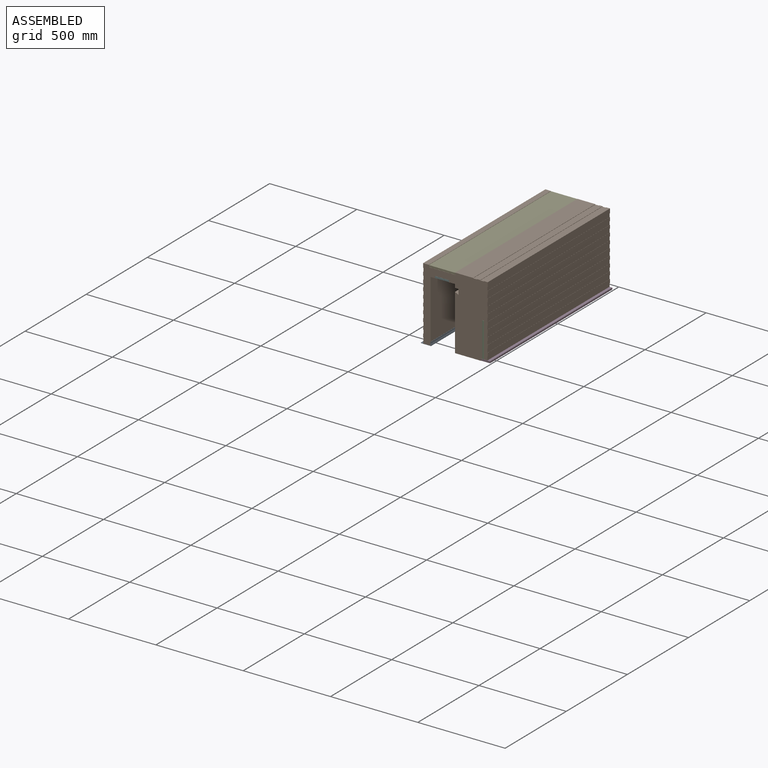
[diagram: assembled view]
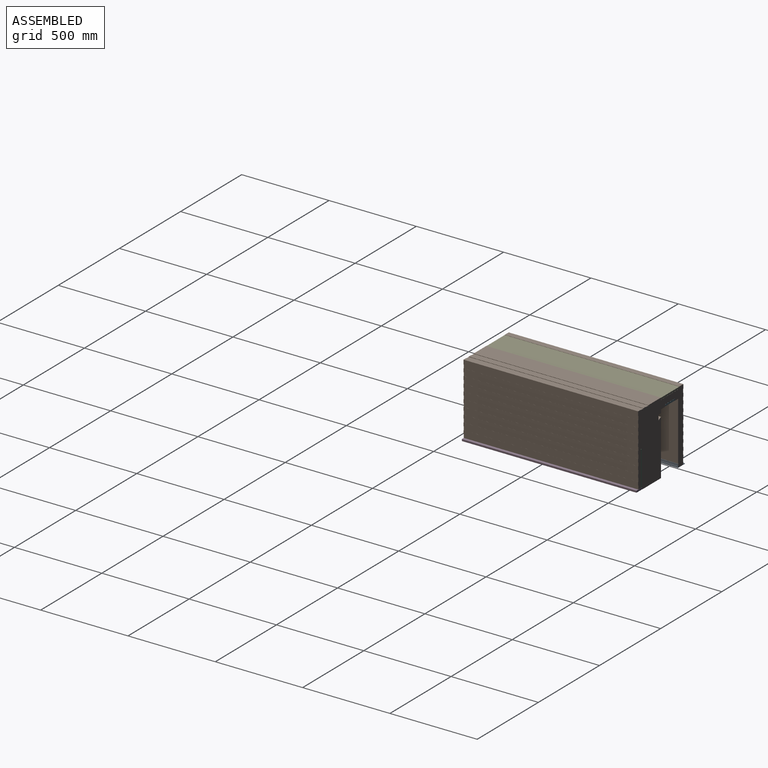
[diagram: assembled view, second angle]
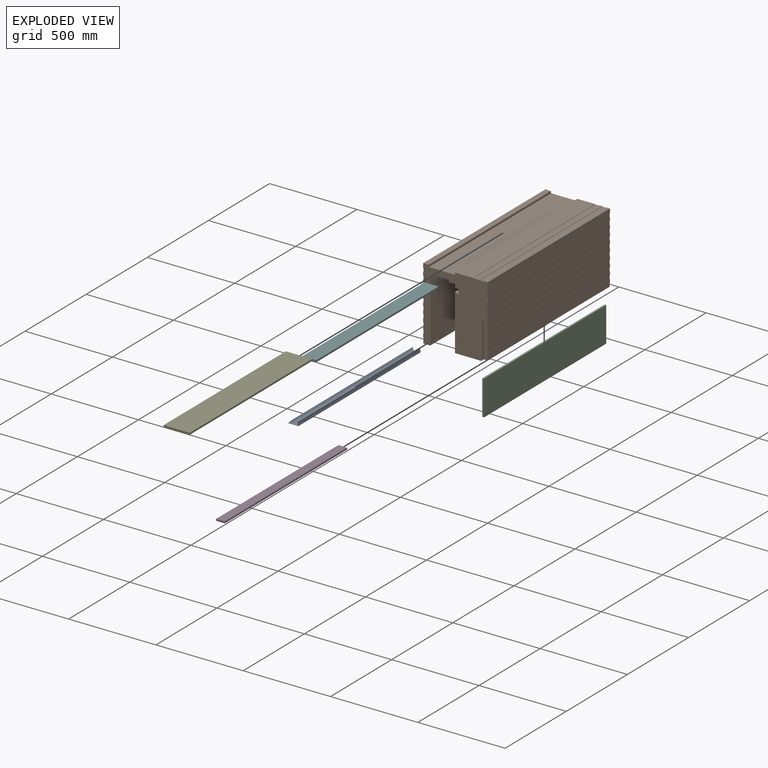
[diagram: exploded view]
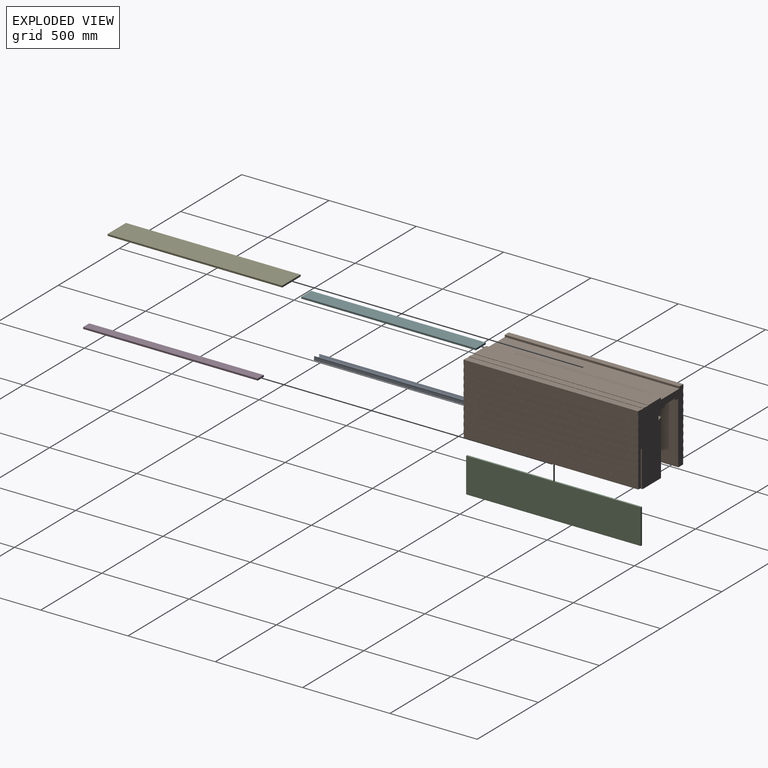
[diagram: exploded view, second angle]
ASSEMBLY  parts=6 mates=5
PART A: 62 faces, bbox 57.5x1000x21 mm
  f0: plane 1000x14.3mm, normal (-1,0,0), area 14303.9mm2, adj f1,f2,f60,f61
  f1: plane 57.5x21mm, normal (0,-1,0), area 145.8mm2, adj f0,f2,f3,f4,f5,f6,f7,f8
  f2: plane 1000x11mm, normal (0,0,1), area 11000mm2, adj f0,f1,f3,f60
  f3: plane 1000x1.5mm, normal (1,0,0), area 1500mm2, adj f1,f2,f4,f60
  f4: plane 1000x1.5mm, normal (0,0,1), area 1500mm2, adj f1,f3,f5,f60
  f5: plane 1000x3mm, normal (-1,0,0), area 3000mm2, adj f1,f4,f6,f60
  f6: plane 1000x57.5mm, normal (0,0,-1), area 57500mm2, adj f1,f5,f7,f60
  f7: plane 1000x4mm, normal (1,0,0), area 4000mm2, adj f1,f6,f8,f60
  f8: plane 1000x1mm, normal (0,0,1), area 1000mm2, adj f1,f7,f9,f60
  f9: plane 1000x3mm, normal (-1,0,0), area 3000mm2, adj f1,f8,f10,f60
  f10: plane 1000x1mm, normal (0,0,1), area 1000mm2, adj f1,f9,f11,f60
  f11: plane 1000x7mm, normal (1,0,0), area 7000mm2, adj f1,f10,f12,f60
  f12: plane 1000x1mm, normal (0,0,-1), area 1000mm2, adj f1,f11,f13,f60
  f13: plane 1000x3mm, normal (-1,0,0), area 3000mm2, adj f1,f12,f14,f60
  f14: plane 1000x1mm, normal (0,0,-1), area 1000mm2, adj f1,f13,f15,f60
  f15: plane 1000x4mm, normal (1,0,0), area 4000mm2, adj f1,f14,f16,f60
  f16: plane 1000x2mm, normal (0,0,1), area 2000mm2, adj f1,f15,f17,f60
  f17: plane 1000x12mm, normal (1,0,0), area 12000mm2, adj f1,f16,f18,f60
  f18: plane 1000x1mm, normal (0,0,1), area 1000mm2, adj f1,f17,f19,f60
  f19: plane 1000x1.73mm, normal (-0.87,0,0.5), area 2000mm2, adj f1,f18,f20,f60
  f20: plane 1000x1mm, normal (0,0,-1), area 1000mm2, adj f1,f19,f21,f60
  f21: plane 1000x1.73mm, normal (-0.87,0,0.5), area 2000mm2, adj f1,f20,f22,f60
  f22: plane 1000x1mm, normal (0,0,-1), area 1000mm2, adj f1,f21,f23,f60
  f23: plane 1000x1.73mm, normal (-0.87,0,0.5), area 2000mm2, adj f1,f22,f24,f60
  f24: plane 1000x1mm, normal (0,0,-1), area 1000mm2, adj f1,f23,f25,f60
  f25: plane 1000x1.73mm, normal (-0.87,0,0.5), area 2000mm2, adj f1,f24,f26,f60
  f26: plane 1000x1mm, normal (0,0,-1), area 1000mm2, adj f1,f25,f27,f60
  f27: plane 1000x1.73mm, normal (-0.87,0,0.5), area 2000mm2, adj f1,f26,f28,f60
  f28: plane 1000x1mm, normal (0,0,-1), area 1000mm2, adj f1,f27,f29,f60
  f29: plane 1000x1.73mm, normal (-0.87,0,0.5), area 2000mm2, adj f1,f28,f30,f60
  f30: plane 1000x1mm, normal (0,0,-1), area 1000mm2, adj f1,f29,f31,f60
  f31: plane 1000x1.73mm, normal (-0.87,0,0.5), area 2000mm2, adj f1,f30,f32,f60
  f32: plane 1000x1mm, normal (0,0,-1), area 1000mm2, adj f1,f31,f33,f60
  f33: plane 1000x1.73mm, normal (-0.87,0,0.5), area 2000mm2, adj f1,f32,f34,f60
  f34: plane 1000x1mm, normal (0,0,-1), area 1000mm2, adj f1,f33,f35,f60
  f35: plane 1000x1.73mm, normal (-0.87,0,0.5), area 2000mm2, adj f1,f34,f36,f60
  f36: plane 1000x1mm, normal (0,0,-1), area 1000mm2, adj f1,f35,f37,f60
  f37: plane 1000x1.73mm, normal (-0.87,0,0.5), area 2000mm2, adj f1,f36,f38,f60
  f38: plane 1000x1mm, normal (0,0,-1), area 1000mm2, adj f1,f37,f39,f60
  f39: plane 1000x1.73mm, normal (-0.87,0,0.5), area 2000mm2, adj f1,f38,f40,f60
  f40: plane 1000x1mm, normal (0,0,-1), area 1000mm2, adj f1,f39,f41,f60
  f41: plane 1000x0.45mm, normal (-1,0,0), area 447.4mm2, adj f1,f40,f42,f60
  f42: plane 1000x41mm, normal (0,0,1), area 41000mm2, adj f1,f41,f43,f60
  f43: plane 1000x0.45mm, normal (1,0,0), area 447.4mm2, adj f1,f42,f44,f60
  f44: plane 1000x1mm, normal (0,0,-1), area 1000mm2, adj f1,f43,f45,f60
  f45: plane 1000x1.73mm, normal (0.87,0,0.5), area 2000mm2, adj f1,f44,f46,f60
  f46: plane 1000x1mm, normal (0,0,-1), area 1000mm2, adj f1,f45,f47,f60
  f47: plane 1000x1.73mm, normal (0.87,0,0.5), area 2000mm2, adj f1,f46,f48,f60
  f48: plane 1000x1mm, normal (0,0,-1), area 1000mm2, adj f1,f47,f49,f60
  f49: plane 1000x1.73mm, normal (0.87,0,0.5), area 2000mm2, adj f1,f48,f50,f60
  f50: plane 1000x1mm, normal (0,0,-1), area 1000mm2, adj f1,f49,f51,f60
  f51: plane 1000x1.73mm, normal (0.87,0,0.5), area 2000mm2, adj f1,f50,f52,f60
  f52: plane 1000x1mm, normal (0,0,-1), area 1000mm2, adj f1,f51,f53,f60
  f53: plane 1000x1.73mm, normal (0.87,0,0.5), area 2000mm2, adj f1,f52,f54,f60
  f54: plane 1000x1mm, normal (0,0,-1), area 1000mm2, adj f1,f53,f55,f60
  f55: plane 1000x1.73mm, normal (0.87,0,0.5), area 2000mm2, adj f1,f54,f56,f60
  f56: plane 1000x1mm, normal (0,0,-1), area 1000mm2, adj f1,f55,f57,f60
  f57: plane 1000x1.73mm, normal (0.87,0,0.5), area 2000mm2, adj f1,f56,f58,f60
  f58: plane 1000x1mm, normal (0,0,-1), area 1000mm2, adj f1,f57,f59,f60
  f59: plane 1000x1.73mm, normal (0.87,0,0.5), area 2000mm2, adj f1,f58,f60,f61
  f60: plane 57.5x21mm, normal (0,1,0), area 145.8mm2, adj f0,f2,f3,f4,f5,f6,f7,f8
  f61: plane 1000x1mm, normal (0,0,1), area 1000mm2, adj f0,f1,f59,f60
PART B: 116 faces, bbox 370x1000x417 mm
  f0: plane 417x370mm, normal (0,-1,0), area 97502.4mm2, adj f2,f3,f4,f5,f6,f7,f8,f9
  f1: plane 417x370mm, normal (0,1,0), area 97502.4mm2, adj f2,f3,f4,f5,f6,f7,f8,f9
  f2: plane 1000x150.1mm, normal (0,0,-1), area 150100mm2, adj f0,f1,f3,f113
  f3: plane 1000x11.5mm, normal (1,0,0), area 11500mm2, adj f0,f1,f2,f4
  f4: plane 1000x5mm, normal (0,0,-1), area 5000mm2, adj f0,f1,f3,f5
  f5: plane 1000x200.5mm, normal (1,0,0), area 200500mm2, adj f0,f1,f4,f115
  f6: plane 1000x200.5mm, normal (-1,0,0), area 200500mm2, adj f0,f1,f7,f115
  f7: plane 1000x19.2mm, normal (0,0,-1), area 19200mm2, adj f0,f1,f6,f8
  f8: plane 1000x21.5mm, normal (1,0,0), area 21500mm2, adj f0,f1,f7,f9
  f9: plane 1000x2mm, normal (-0.45,0,-0.89), area 2236.1mm2, adj f0,f1,f8,f10
  f10: plane 1000x20mm, normal (1,0,0), area 20000mm2, adj f0,f1,f9,f11
  f11: plane 1000x2mm, normal (-0.45,0,0.89), area 2236.1mm2, adj f0,f1,f10,f12
  f12: plane 1000x22mm, normal (1,0,0), area 22000mm2, adj f0,f1,f11,f13
  f13: plane 1000x2mm, normal (-0.45,0,-0.89), area 2236.1mm2, adj f0,f1,f12,f14
  f14: plane 1000x20mm, normal (1,0,0), area 20000mm2, adj f0,f1,f13,f15
  f15: plane 1000x2mm, normal (-0.45,0,0.89), area 2236.1mm2, adj f0,f1,f14,f16
  f16: plane 1000x22mm, normal (1,0,0), area 22000mm2, adj f0,f1,f15,f17
  f17: plane 1000x2mm, normal (-0.45,0,-0.89), area 2236.1mm2, adj f0,f1,f16,f18
  f18: plane 1000x20mm, normal (1,0,0), area 20000mm2, adj f0,f1,f17,f19
  f19: plane 1000x2mm, normal (-0.45,0,0.89), area 2236.1mm2, adj f0,f1,f18,f20
  f20: plane 1000x22mm, normal (1,0,0), area 22000mm2, adj f0,f1,f19,f21
  f21: plane 1000x2mm, normal (-0.45,0,-0.89), area 2236.1mm2, adj f0,f1,f20,f22
  f22: plane 1000x20mm, normal (1,0,0), area 20000mm2, adj f0,f1,f21,f23
  f23: plane 1000x2mm, normal (-0.45,0,0.89), area 2236.1mm2, adj f0,f1,f22,f24
  f24: plane 1000x22mm, normal (1,0,0), area 22000mm2, adj f0,f1,f23,f25
  f25: plane 1000x2mm, normal (-0.45,0,-0.89), area 2236.1mm2, adj f0,f1,f24,f26
  f26: plane 1000x20mm, normal (1,0,0), area 20000mm2, adj f0,f1,f25,f27
  f27: plane 1000x2mm, normal (-0.45,0,0.89), area 2236.1mm2, adj f0,f1,f26,f28
  f28: plane 1000x22mm, normal (1,0,0), area 22000mm2, adj f0,f1,f27,f29
  f29: plane 1000x2mm, normal (-0.45,0,-0.89), area 2236.1mm2, adj f0,f1,f28,f30
  f30: plane 1000x20mm, normal (1,0,0), area 20000mm2, adj f0,f1,f29,f31
  f31: plane 1000x2mm, normal (-0.45,0,0.89), area 2236.1mm2, adj f0,f1,f30,f32
  f32: plane 1000x22mm, normal (1,0,0), area 22000mm2, adj f0,f1,f31,f33
  f33: plane 1000x2mm, normal (-0.45,0,-0.89), area 2236.1mm2, adj f0,f1,f32,f34
  f34: plane 1000x20mm, normal (1,0,0), area 20000mm2, adj f0,f1,f33,f35
  f35: plane 1000x2mm, normal (-0.45,0,0.89), area 2236.1mm2, adj f0,f1,f34,f36
  f36: plane 1000x22mm, normal (1,0,0), area 22000mm2, adj f0,f1,f35,f37
  f37: plane 1000x2mm, normal (-0.45,0,-0.89), area 2236.1mm2, adj f0,f1,f36,f38
  f38: plane 1000x20mm, normal (1,0,0), area 20000mm2, adj f0,f1,f37,f39
  f39: plane 1000x2mm, normal (-0.45,0,0.89), area 2236.1mm2, adj f0,f1,f38,f40
  f40: plane 1000x22mm, normal (1,0,0), area 22000mm2, adj f0,f1,f39,f41
  f41: plane 1000x2mm, normal (-0.45,0,-0.89), area 2236.1mm2, adj f0,f1,f40,f42
  f42: plane 1000x20mm, normal (1,0,0), area 20000mm2, adj f0,f1,f41,f43
  f43: plane 1000x2mm, normal (-0.45,0,0.89), area 2236.1mm2, adj f0,f1,f42,f44
  f44: plane 1000x22mm, normal (1,0,0), area 22000mm2, adj f0,f1,f43,f45
  f45: plane 1000x2mm, normal (-0.45,0,-0.89), area 2236.1mm2, adj f0,f1,f44,f46
  f46: plane 1000x25mm, normal (1,0,0), area 25000mm2, adj f0,f1,f45,f47
  f47: plane 1000x22.1mm, normal (0,0,1), area 22100mm2, adj f0,f1,f46,f48
  f48: plane 1000x2mm, normal (-0.89,0,-0.45), area 2236.1mm2, adj f0,f1,f47,f49
  f49: plane 1000x22mm, normal (0,0,1), area 22000mm2, adj f0,f1,f48,f50
  f50: plane 1000x2mm, normal (0.89,0,-0.45), area 2236.1mm2, adj f0,f1,f49,f51
  f51: plane 1000x20mm, normal (0,0,1), area 20000mm2, adj f0,f1,f50,f52
  f52: plane 1000x2mm, normal (-0.89,0,-0.45), area 2236.1mm2, adj f0,f1,f51,f53
  f53: plane 1000x23mm, normal (0,0,1), area 23000mm2, adj f0,f1,f52,f54
  f54: plane 1000x2mm, normal (0.89,0,-0.45), area 2236.1mm2, adj f0,f1,f53,f55
  f55: plane 1000x103.5mm, normal (0,0,1), area 103500mm2, adj f0,f1,f54,f114
  f56: plane 1000x151mm, normal (0,0,1), area 151000mm2, adj f0,f1,f57,f114
  f57: plane 1000x11.5mm, normal (1,0,0), area 11500mm2, adj f0,f1,f56,f58
  f58: plane 1000x32.4mm, normal (0,0,1), area 32400mm2, adj f0,f1,f57,f59
  f59: plane 1000x25mm, normal (-1,0,0), area 25000mm2, adj f0,f1,f58,f60
  f60: plane 1000x2mm, normal (0.45,0,-0.89), area 2236.1mm2, adj f0,f1,f59,f61
  f61: plane 1000x22mm, normal (-1,0,0), area 22000mm2, adj f0,f1,f60,f62
  f62: plane 1000x2mm, normal (0.45,0,0.89), area 2236.1mm2, adj f0,f1,f61,f63
  f63: plane 1000x20mm, normal (-1,0,0), area 20000mm2, adj f0,f1,f62,f64
  f64: plane 1000x2mm, normal (0.45,0,-0.89), area 2236.1mm2, adj f0,f1,f63,f65
  f65: plane 1000x22mm, normal (-1,0,0), area 22000mm2, adj f0,f1,f64,f66
  f66: plane 1000x2mm, normal (0.45,0,0.89), area 2236.1mm2, adj f0,f1,f65,f67
  f67: plane 1000x20mm, normal (-1,0,0), area 20000mm2, adj f0,f1,f66,f68
  f68: plane 1000x2mm, normal (0.45,0,-0.89), area 2236.1mm2, adj f0,f1,f67,f69
  f69: plane 1000x22mm, normal (-1,0,0), area 22000mm2, adj f0,f1,f68,f70
  f70: plane 1000x2mm, normal (0.45,0,0.89), area 2236.1mm2, adj f0,f1,f69,f71
  f71: plane 1000x20mm, normal (-1,0,0), area 20000mm2, adj f0,f1,f70,f72
  f72: plane 1000x2mm, normal (0.45,0,-0.89), area 2236.1mm2, adj f0,f1,f71,f73
  f73: plane 1000x22mm, normal (-1,0,0), area 22000mm2, adj f0,f1,f72,f74
  f74: plane 1000x2mm, normal (0.45,0,0.89), area 2236.1mm2, adj f0,f1,f73,f75
  f75: plane 1000x20mm, normal (-1,0,0), area 20000mm2, adj f0,f1,f74,f76
  f76: plane 1000x2mm, normal (0.45,0,-0.89), area 2236.1mm2, adj f0,f1,f75,f77
  f77: plane 1000x22mm, normal (-1,0,0), area 22000mm2, adj f0,f1,f76,f78
  f78: plane 1000x2mm, normal (0.45,0,0.89), area 2236.1mm2, adj f0,f1,f77,f79
  f79: plane 1000x20mm, normal (-1,0,0), area 20000mm2, adj f0,f1,f78,f80
  f80: plane 1000x2mm, normal (0.45,0,-0.89), area 2236.1mm2, adj f0,f1,f79,f81
  f81: plane 1000x22mm, normal (-1,0,0), area 22000mm2, adj f0,f1,f80,f82
  f82: plane 1000x2mm, normal (0.45,0,0.89), area 2236.1mm2, adj f0,f1,f81,f83
  f83: plane 1000x20mm, normal (-1,0,0), area 20000mm2, adj f0,f1,f82,f84
  f84: plane 1000x2mm, normal (0.45,0,-0.89), area 2236.1mm2, adj f0,f1,f83,f85
  f85: plane 1000x22mm, normal (-1,0,0), area 22000mm2, adj f0,f1,f84,f86
  f86: plane 1000x2mm, normal (0.45,0,0.89), area 2236.1mm2, adj f0,f1,f85,f87
  f87: plane 1000x20mm, normal (-1,0,0), area 20000mm2, adj f0,f1,f86,f88
  f88: plane 1000x2mm, normal (0.45,0,-0.89), area 2236.1mm2, adj f0,f1,f87,f89
  f89: plane 1000x22mm, normal (-1,0,0), area 22000mm2, adj f0,f1,f88,f90
  f90: plane 1000x2mm, normal (0.45,0,0.89), area 2236.1mm2, adj f0,f1,f89,f91
  f91: plane 1000x20mm, normal (-1,0,0), area 20000mm2, adj f0,f1,f90,f92
  f92: plane 1000x2mm, normal (0.45,0,-0.89), area 2236.1mm2, adj f0,f1,f91,f93
  f93: plane 1000x22mm, normal (-1,0,0), area 22000mm2, adj f0,f1,f92,f94
  f94: plane 1000x2mm, normal (0.45,0,0.89), area 2236.1mm2, adj f0,f1,f93,f95
  f95: plane 1000x20mm, normal (-1,0,0), area 20000mm2, adj f0,f1,f94,f96
  f96: plane 1000x2mm, normal (0.45,0,-0.89), area 2236.1mm2, adj f0,f1,f95,f97
  f97: plane 1000x13mm, normal (-1,0,0), area 13000mm2, adj f0,f1,f96,f98
  f98: plane 1000x0.1mm, normal (0,0,1), area 100.7mm2, adj f0,f1,f97,f99
  f99: plane 1000x18.5mm, normal (-1,0,0), area 18504.2mm2, adj f0,f1,f98,f100
  f100: plane 1000x39.1mm, normal (0,0,-1), area 39100mm2, adj f0,f1,f99,f101
  f101: plane 1000x21.53mm, normal (1,0,0), area 21529.7mm2, adj f0,f1,f100,f102
  f102: plane 1000x1.9mm, normal (0,0,-1), area 1900.7mm2, adj f0,f1,f101,f103
  f103: plane 1000x334mm, normal (1,0,0), area 334000mm2, adj f0,f1,f102,f104
  f104: plane 1000x24.5mm, normal (0,0,-1), area 24500mm2, adj f0,f1,f103,f105
  f105: plane 1000x11.5mm, normal (1,0,0), area 11500mm2, adj f0,f1,f104,f106
  f106: plane 1000x81mm, normal (0,0,-1), area 81000mm2, adj f0,f1,f105,f107
  f107: plane 1000x11.5mm, normal (-1,0,0), area 11500mm2, adj f0,f1,f106,f108
  f108: plane 1000x34.5mm, normal (0,0,-1), area 34500mm2, adj f0,f1,f107,f109
  f109: plane 1000x20mm, normal (-1,0,0), area 20000mm2, adj f0,f1,f108,f110
  f110: plane 1000x20mm, normal (0,0,-1), area 20000mm2, adj f0,f1,f109,f111
  f111: plane 1000x30mm, normal (-1,0,0), area 30000mm2, adj f0,f1,f110,f112
  f112: plane 1000x20mm, normal (0.45,0,0.89), area 22360.7mm2, adj f0,f1,f111,f113
  f113: plane 1000x317mm, normal (-1,0,0), area 317000mm2, adj f0,f1,f2,f112
  f114: plane 1000x11.5mm, normal (-1,0,0), area 11500mm2, adj f0,f1,f55,f56
  f115: plane 1000x10.8mm, normal (0,0,-1), area 10800mm2, adj f0,f1,f5,f6
PART C: 6 faces, bbox 200x1000x10 mm
  f0: plane 1000x10mm, normal (-1,0,0), area 10000mm2, adj f1,f3,f4,f5
  f1: plane 1000x200mm, normal (0,0,-1), area 200000mm2, adj f0,f2,f4,f5
  f2: plane 1000x10mm, normal (1,0,0), area 10000mm2, adj f1,f3,f4,f5
  f3: plane 1000x200mm, normal (0,0,1), area 200000mm2, adj f0,f2,f4,f5
  f4: plane 200x10mm, normal (0,-1,0), area 2000mm2, adj f0,f1,f2,f3
  f5: plane 200x10mm, normal (0,1,0), area 2000mm2, adj f0,f1,f2,f3
PART D: 6 faces, bbox 50x1000x10 mm
  f0: plane 1000x10mm, normal (-1,0,0), area 10000mm2, adj f1,f3,f4,f5
  f1: plane 1000x50mm, normal (0,0,-1), area 50000mm2, adj f0,f2,f4,f5
  f2: plane 1000x10mm, normal (1,0,0), area 10000mm2, adj f1,f3,f4,f5
  f3: plane 1000x50mm, normal (0,0,1), area 50000mm2, adj f0,f2,f4,f5
  f4: plane 50x10mm, normal (0,-1,0), area 500mm2, adj f0,f1,f2,f3
  f5: plane 50x10mm, normal (0,1,0), area 500mm2, adj f0,f1,f2,f3
PART E: 6 faces, bbox 150x1000x10 mm
  f0: plane 1000x10mm, normal (-1,0,0), area 10000mm2, adj f1,f3,f4,f5
  f1: plane 1000x150mm, normal (0,0,-1), area 150000mm2, adj f0,f2,f4,f5
  f2: plane 1000x10mm, normal (1,0,0), area 10000mm2, adj f1,f3,f4,f5
  f3: plane 1000x150mm, normal (0,0,1), area 150000mm2, adj f0,f2,f4,f5
  f4: plane 150x10mm, normal (0,-1,0), area 1500mm2, adj f0,f1,f2,f3
  f5: plane 150x10mm, normal (0,1,0), area 1500mm2, adj f0,f1,f2,f3
PART F: 6 faces, bbox 80x1000x10 mm
  f0: plane 1000x10mm, normal (-1,0,0), area 10000mm2, adj f1,f3,f4,f5
  f1: plane 1000x80mm, normal (0,0,-1), area 80000mm2, adj f0,f2,f4,f5
  f2: plane 1000x10mm, normal (1,0,0), area 10000mm2, adj f1,f3,f4,f5
  f3: plane 1000x80mm, normal (0,0,1), area 80000mm2, adj f0,f2,f4,f5
  f4: plane 80x10mm, normal (0,-1,0), area 800mm2, adj f0,f1,f2,f3
  f5: plane 80x10mm, normal (0,1,0), area 800mm2, adj f0,f1,f2,f3
PLACE A t=(-469.5,420.05,-44.54)mm
PLACE B t=(-329.4,420.05,-407.63)mm
PLACE C rot(axis=(0,-1,0),90deg) t=(-165.9,420.05,-32.59)mm
PLACE D t=(-180.9,420.05,-43.09)mm
PLACE E t=(-481.5,420.05,361.91)mm
PLACE F t=(-446.5,420.05,313.91)mm
MATE fastened E.f4 <-> B.f0  axis (0,-1,0) through (-481.5,-579.95,361.91)mm
MATE fastened F.f4 <-> B.f0  axis (0,-1,0) through (-447,-579.95,324.41)mm
MATE fastened A.f1 <-> B.f0  axis (0,-1,0) through (-512.5,-579.95,-42.59)mm
MATE fastened D.f4 <-> B.f0  axis (0,-1,0) through (-181.4,-579.95,-32.59)mm
MATE fastened C.f4 <-> B.f0  axis (0,-1,0) through (-176.4,-579.95,167.91)mm
